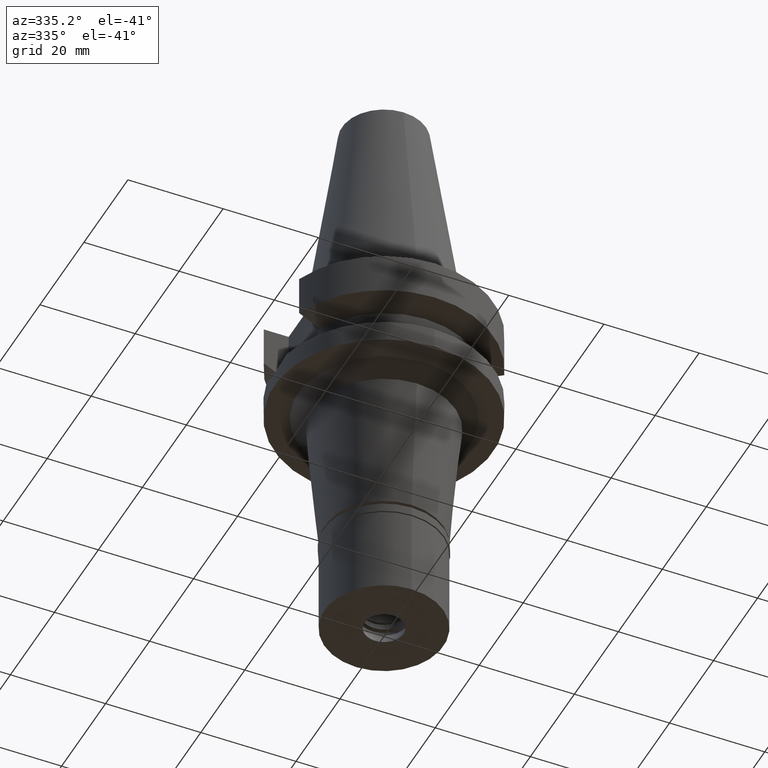
[diagram: clean part render]
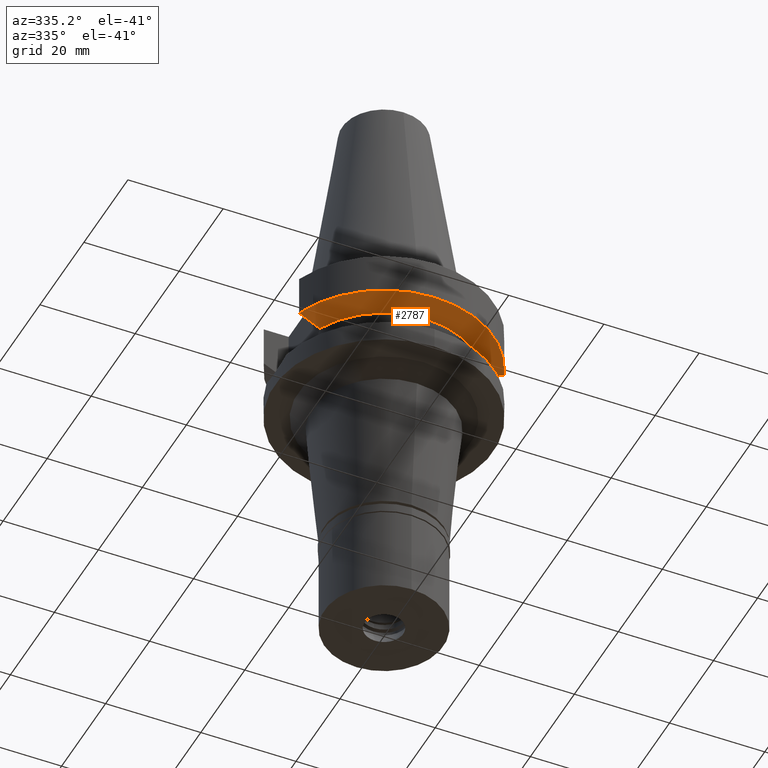
[diagram: same view with one face highlighted and labeled with its STEP entity id]
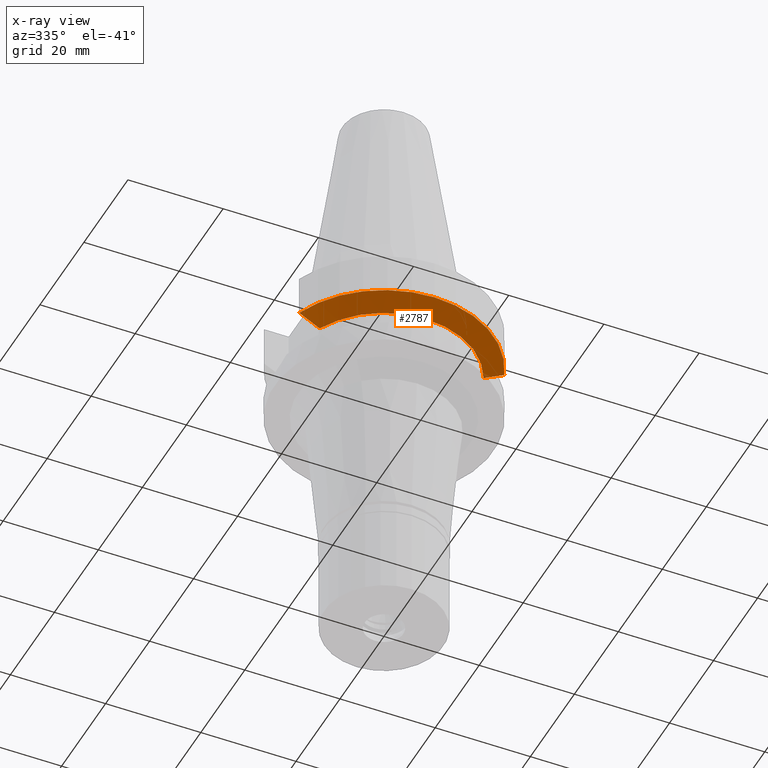
[diagram: x-ray of the same camera — body ghosted, the highlighted face saturated]
A machine part, auxiliary view. The second image highlights one B-rep face of the part: STEP entity #2787.
The next image is the same camera in x-ray: the body ghosted, the highlighted face saturated — about 0% of this face is hidden behind the body in this view.
In plain terms, the highlighted conical surface has half-angle 60 deg.
Its self-contained STEP definition (entity closure, byte-faithful):
#49 = CARTESIAN_POINT ( 'NONE',  ( 21.54524309446999908, -8.050000000002000888, -9.567208369710998639 ) ) ;
#57 = DIRECTION ( 'NONE',  ( 0.0000000000000000000, 1.000000000000000000, 0.0000000000000000000 ) ) ;
#166 = ORIENTED_EDGE ( 'NONE', *, *, #2580, .F. ) ;
#168 = VERTEX_POINT ( 'NONE', #49 ) ;
#188 = AXIS2_PLACEMENT_3D ( 'NONE', #2690, #1294, #57 ) ;
#268 = CARTESIAN_POINT ( 'NONE',  ( 18.30417678345555643, -8.050000009833846448, -11.30245973487096300 ) ) ;
#366 = ORIENTED_EDGE ( 'NONE', *, *, #2025, .F. ) ;
#392 = ORIENTED_EDGE ( 'NONE', *, *, #1318, .T. ) ;
#417 = CARTESIAN_POINT ( 'NONE',  ( 21.54524309446999908, -8.050000000002000888, -9.567208369710998639 ) ) ;
#431 = CARTESIAN_POINT ( 'NONE',  ( 20.64101735261274584, -8.050004185213722963, -10.05624233343221618 ) ) ;
#539 = B_SPLINE_CURVE_WITH_KNOTS ( 'NONE', 3,
 ( #2793, #2541, #431, #417 ),
 .UNSPECIFIED., .F., .F.,
 ( 4, 4 ),
 ( 0.0000000000000000000, 1.000000000000000000 ),
 .UNSPECIFIED. ) ;
#580 = DIRECTION ( 'NONE',  ( 0.0000000000000000000, 0.0000000000000000000, 1.000000000000000000 ) ) ;
#672 = CIRCLE ( 'NONE', #1617, 23.00000000000000000 ) ;
#699 = CARTESIAN_POINT ( 'NONE',  ( -17.23531622822000386, -7.996491147958001200, -11.87660607717000083 ) ) ;
#713 = CARTESIAN_POINT ( 'NONE',  ( -17.72598979704696376, -8.027133611820556069, -11.61218201620528490 ) ) ;
#860 = B_SPLINE_CURVE_WITH_KNOTS ( 'NONE', 3,
 ( #3028, #2981, #902, #1354 ),
 .UNSPECIFIED., .F., .F.,
 ( 4, 4 ),
 ( 0.0000000000000000000, 1.000000000000000000 ),
 .UNSPECIFIED. ) ;
#901 = EDGE_CURVE ( 'NONE', #1910, #168, #672, .T. ) ;
#902 = CARTESIAN_POINT ( 'NONE',  ( -19.78174442230803365, -8.049991903457407005, -10.51718567404478755 ) ) ;
#1034 = EDGE_CURVE ( 'NONE', #2578, #168, #539, .T. ) ;
#1041 = B_SPLINE_CURVE_WITH_KNOTS ( 'NONE', 3,
 ( #1843, #268, #1644, #2346 ),
 .UNSPECIFIED., .F., .F.,
 ( 4, 4 ),
 ( 0.0000000000000000000, 1.000000000000000000 ),
 .UNSPECIFIED. ) ;
#1061 = CARTESIAN_POINT ( 'NONE',  ( 17.23531135313000107, -7.996501749111999402, -11.87660739354000050 ) ) ;
#1195 = EDGE_CURVE ( 'NONE', #2816, #2243, #1674, .T. ) ;
#1205 = CARTESIAN_POINT ( 'NONE',  ( -21.54524325238000060, -8.049999577366000025, -9.567211146628999074 ) ) ;
#1249 = EDGE_LOOP ( 'NONE', ( #2513, #366, #166, #1471, #1351, #392 ) ) ;
#1281 = DIRECTION ( 'NONE',  ( 0.0000000000000000000, 0.0000000000000000000, -1.000000000000000000 ) ) ;
#1294 = DIRECTION ( 'NONE',  ( 0.0000000000000000000, 0.0000000000000000000, 1.000000000000000000 ) ) ;
#1318 = EDGE_CURVE ( 'NONE', #1910, #2243, #860, .T. ) ;
#1351 = ORIENTED_EDGE ( 'NONE', *, *, #901, .F. ) ;
#1354 = CARTESIAN_POINT ( 'NONE',  ( -18.96738966519000158, -8.049994318072998922, -10.95000099924999937 ) ) ;
#1440 = CARTESIAN_POINT ( 'NONE',  ( -18.30334760937030225, -8.049999956192346318, -11.30291655530395722 ) ) ;
#1471 = ORIENTED_EDGE ( 'NONE', *, *, #1034, .T. ) ;
#1617 = AXIS2_PLACEMENT_3D ( 'NONE', #2703, #580, #2481 ) ;
#1644 = CARTESIAN_POINT ( 'NONE',  ( 17.72682661227221956, -8.027186147328221111, -11.61172866667754455 ) ) ;
#1674 = B_SPLINE_CURVE_WITH_KNOTS ( 'NONE', 3,
 ( #699, #713, #1440, #2384 ),
 .UNSPECIFIED., .F., .F.,
 ( 4, 4 ),
 ( 0.0000000000000000000, 1.000000000000000000 ),
 .UNSPECIFIED. ) ;
#1843 = CARTESIAN_POINT ( 'NONE',  ( 18.96736186668000101, -8.050001277885000306, -10.94999977540000025 ) ) ;
#1887 = CIRCLE ( 'NONE', #2942, 19.00000000000000000 ) ;
#1910 = VERTEX_POINT ( 'NONE', #1205 ) ;
#1989 = CARTESIAN_POINT ( 'NONE',  ( 0.0000000000000000000, 0.0000000000000000000, -11.87660944646999894 ) ) ;
#2025 = EDGE_CURVE ( 'NONE', #2406, #2816, #1887, .T. ) ;
#2203 = DIRECTION ( 'NONE',  ( 0.0000000000000000000, -1.000000000000000000, 0.0000000000000000000 ) ) ;
#2243 = VERTEX_POINT ( 'NONE', #2377 ) ;
#2346 = CARTESIAN_POINT ( 'NONE',  ( 17.23531135313000107, -7.996501749111999402, -11.87660739354000050 ) ) ;
#2377 = CARTESIAN_POINT ( 'NONE',  ( -18.96738966519000158, -8.049994318072998922, -10.95000099924999937 ) ) ;
#2384 = CARTESIAN_POINT ( 'NONE',  ( -18.96738966519000158, -8.049994318072998922, -10.95000099924999937 ) ) ;
#2406 = VERTEX_POINT ( 'NONE', #1061 ) ;
#2424 = FACE_OUTER_BOUND ( 'NONE', #1249, .T. ) ;
#2468 = CONICAL_SURFACE ( 'NONE', #188, 21.00000000000000000, 1.047197551196400456 ) ;
#2481 = DIRECTION ( 'NONE',  ( 0.0000000000000000000, -1.000000000000000000, 0.0000000000000000000 ) ) ;
#2513 = ORIENTED_EDGE ( 'NONE', *, *, #1195, .F. ) ;
#2541 = CARTESIAN_POINT ( 'NONE',  ( 19.78176446279780265, -8.050001299955177103, -10.51717305766836219 ) ) ;
#2578 = VERTEX_POINT ( 'NONE', #2618 ) ;
#2580 = EDGE_CURVE ( 'NONE', #2578, #2406, #1041, .T. ) ;
#2618 = CARTESIAN_POINT ( 'NONE',  ( 18.96736186668000101, -8.050001277885000306, -10.94999977540000025 ) ) ;
#2674 = CARTESIAN_POINT ( 'NONE',  ( -17.23531622822000386, -7.996491147958001200, -11.87660607717000083 ) ) ;
#2690 = CARTESIAN_POINT ( 'NONE',  ( 0.0000000000000000000, 0.0000000000000000000, -10.72190890808999875 ) ) ;
#2703 = CARTESIAN_POINT ( 'NONE',  ( 0.0000000000000000000, 0.0000000000000000000, -9.567208369710998639 ) ) ;
#2787 = ADVANCED_FACE ( 'NONE', ( #2424 ), #2468, .T. ) ;
#2793 = CARTESIAN_POINT ( 'NONE',  ( 18.96736186668000101, -8.050001277885000306, -10.94999977540000025 ) ) ;
#2816 = VERTEX_POINT ( 'NONE', #2674 ) ;
#2942 = AXIS2_PLACEMENT_3D ( 'NONE', #1989, #1281, #2203 ) ;
#2981 = CARTESIAN_POINT ( 'NONE',  ( -20.64098922447007922, -8.049999155425632935, -10.05625859811074996 ) ) ;
#3028 = CARTESIAN_POINT ( 'NONE',  ( -21.54524325238000060, -8.049999577366000025, -9.567211146628999074 ) ) ;